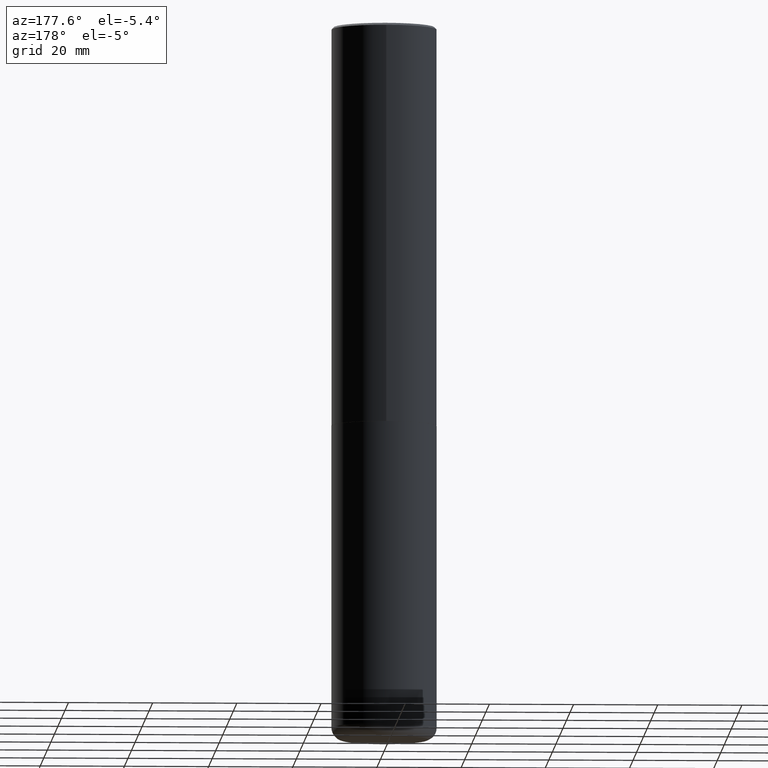
[diagram: clean part render]
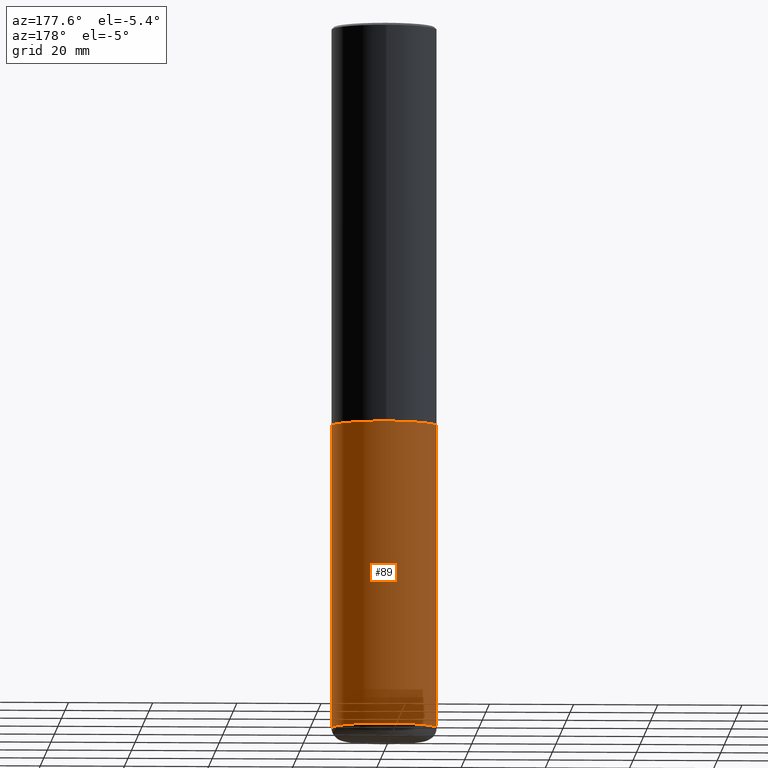
[diagram: same view with one face highlighted and labeled with its STEP entity id]
A machine part, auxiliary view. The second image highlights one B-rep face of the part: STEP entity #89.
In plain terms, the highlighted cylindrical surface (partial cylindrical patch) has radius 12.5006 mm, axis along (-0, 0, 1).
Its self-contained STEP definition (entity closure, byte-faithful):
#3 = VERTEX_POINT ( 'NONE', #71 ) ;
#10 = CARTESIAN_POINT ( 'NONE',  ( 9.146297882013029477E-29, -1.305848935540725085E-14, -3.740100000000000424 ) ) ;
#19 = CARTESIAN_POINT ( 'NONE',  ( 0.4921499999999999764, -3.436665081823295777E-15, 2.399810400207969603E-29 ) ) ;
#23 = CARTESIAN_POINT ( 'NONE',  ( 1.607846830690603466E-28, -2.295579150662591525E-14, -6.574799999999999756 ) ) ;
#41 = AXIS2_PLACEMENT_3D ( 'NONE', #23, #316, #338 ) ;
#58 = CARTESIAN_POINT ( 'NONE',  ( 0.4921499999999999764, -1.649515443723054663E-14, -3.740100000000000424 ) ) ;
#66 = ORIENTED_EDGE ( 'NONE', *, *, #269, .T. ) ;
#71 = CARTESIAN_POINT ( 'NONE',  ( -0.4921499999999999764, -1.451020435697325173E-14, -3.740100000000000424 ) ) ;
#81 = LINE ( 'NONE', #19, #403 ) ;
#85 = EDGE_CURVE ( 'NONE', #318, #3, #415, .T. ) ;
#88 = AXIS2_PLACEMENT_3D ( 'NONE', #337, #214, #276 ) ;
#89 = ADVANCED_FACE ( 'NONE', ( #278 ), #119, .T. ) ;
#99 = VERTEX_POINT ( 'NONE', #397 ) ;
#119 = CYLINDRICAL_SURFACE ( 'NONE', #88, 0.4921499999999999764 ) ;
#130 = EDGE_CURVE ( 'NONE', #263, #3, #182, .T. ) ;
#150 = DIRECTION ( 'NONE',  ( 1.000000000000000000, -6.982962677686265922E-15, 0.000000000000000000 ) ) ;
#177 = DIRECTION ( 'NONE',  ( -2.445468806185136877E-29, 3.491481338843145188E-15, 1.000000000000000000 ) ) ;
#181 = EDGE_CURVE ( 'NONE', #99, #318, #81, .T. ) ;
#182 = LINE ( 'NONE', #247, #202 ) ;
#198 = EDGE_LOOP ( 'NONE', ( #66, #388, #222, #224 ) ) ;
#202 = VECTOR ( 'NONE', #370, 39.37007874015748143 ) ;
#214 = DIRECTION ( 'NONE',  ( -2.445468806185136597E-29, 3.491481338843145583E-15, 1.000000000000000000 ) ) ;
#222 = ORIENTED_EDGE ( 'NONE', *, *, #85, .F. ) ;
#224 = ORIENTED_EDGE ( 'NONE', *, *, #181, .F. ) ;
#247 = CARTESIAN_POINT ( 'NONE',  ( -0.4921499999999999764, 3.496936074043332897E-15, -2.420853904668951509E-29 ) ) ;
#263 = VERTEX_POINT ( 'NONE', #407 ) ;
#269 = EDGE_CURVE ( 'NONE', #99, #263, #304, .T. ) ;
#276 = DIRECTION ( 'NONE',  ( 1.000000000000000000, -6.982962677686265922E-15, 4.876176775795935793E-29 ) ) ;
#278 = FACE_OUTER_BOUND ( 'NONE', #198, .T. ) ;
#304 = CIRCLE ( 'NONE', #41, 0.4921500000000000319 ) ;
#305 = DIRECTION ( 'NONE',  ( -2.445468806185136597E-29, 3.491481338843145583E-15, 1.000000000000000000 ) ) ;
#316 = DIRECTION ( 'NONE',  ( -2.445468806185136597E-29, 3.491481338843145583E-15, 1.000000000000000000 ) ) ;
#317 = AXIS2_PLACEMENT_3D ( 'NONE', #10, #305, #150 ) ;
#318 = VERTEX_POINT ( 'NONE', #58 ) ;
#337 = CARTESIAN_POINT ( 'NONE',  ( 0.000000000000000000, 0.000000000000000000, 0.000000000000000000 ) ) ;
#338 = DIRECTION ( 'NONE',  ( 1.000000000000000000, -6.982962677686265133E-15, 0.000000000000000000 ) ) ;
#370 = DIRECTION ( 'NONE',  ( -2.445468806185136877E-29, 3.491481338843145188E-15, 1.000000000000000000 ) ) ;
#388 = ORIENTED_EDGE ( 'NONE', *, *, #130, .T. ) ;
#397 = CARTESIAN_POINT ( 'NONE',  ( 0.4921499999999999764, -2.639245658844920945E-14, -6.574799999999999756 ) ) ;
#403 = VECTOR ( 'NONE', #177, 39.37007874015748143 ) ;
#407 = CARTESIAN_POINT ( 'NONE',  ( -0.4921499999999999764, -1.945885543258258157E-14, -6.574799999999999756 ) ) ;
#415 = CIRCLE ( 'NONE', #317, 0.4921499999999999764 ) ;